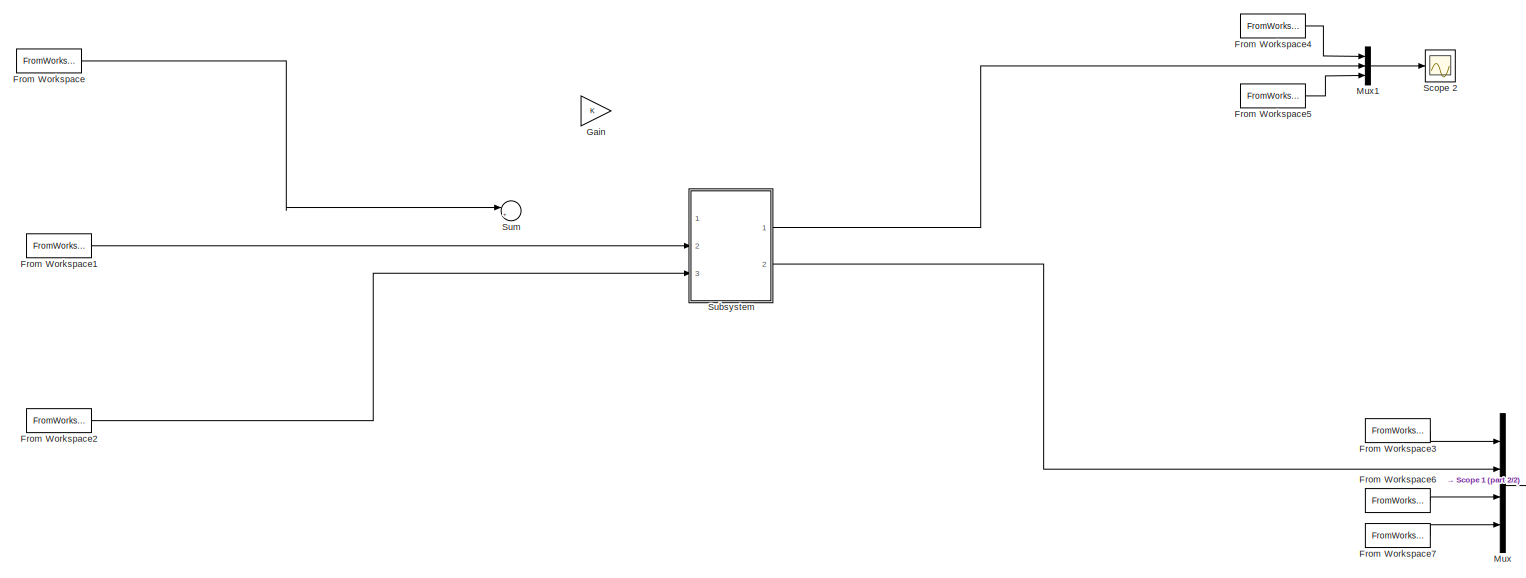
[diagram: root canvas - part 1/2, most of the canvas]
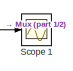
[diagram: root canvas - part 2/2, bottom right region]
MODEL slx_86004a4b430e
KIND model
CONFIG AbsTol = auto
CONFIG EnableMultiTasking = off
CONFIG FixedStep = auto
CONFIG MaxStep = auto
CONFIG MinStep = auto
CONFIG RelTol = 1e-3
CONFIG SampleTimeConstraint = Unconstrained
CONFIG Solver = VariableStepAuto
CONFIG SolverName = VariableStepAuto
CONFIG StartTime = 0.0
CONFIG StopTime = 270
BLOCK [FromWorkspace] From Workspace
  SampleTime = 0
  VariableName = sim_u
  ZeroCross = on
BLOCK [FromWorkspace] From Workspace1
  SampleTime = 0
  VariableName = sim_vt
  ZeroCross = on
BLOCK [FromWorkspace] From Workspace2
  SampleTime = 0
  VariableName = sim_vo
  ZeroCross = on
BLOCK [FromWorkspace] From Workspace3
  SampleTime = 0
  VariableName = sim_h2
  ZeroCross = on
BLOCK [FromWorkspace] From Workspace4
  SampleTime = 0
  VariableName = sim_h1
  ZeroCross = on
BLOCK [FromWorkspace] From Workspace5
  SampleTime = 0
  VariableName = sim_u
  ZeroCross = on
BLOCK [FromWorkspace] From Workspace6
  SampleTime = 0
  VariableName = sim_vt
  ZeroCross = on
BLOCK [FromWorkspace] From Workspace7
  SampleTime = 0
  VariableName = sim_vo
  ZeroCross = on
BLOCK [Gain] Gain
  OutDataTypeStr = Inherit: Inherit via internal rule
  ParamDataTypeStr = Inherit: Inherit via internal rule
  SaturateOnIntegerOverflow = off
BLOCK [Mux] Mux
  DisplayOption = bar
  Ports = [4, 1]
BLOCK [Mux] Mux1
  DisplayOption = bar
  Inputs = 3
  Ports = [3, 1]
BLOCK [Scope] Scope 1
  NumInputPorts = 1
  Ports = [1]
  ScopeSpecificationString = Simulink.scopes.TimeScopeBlockCfg('CurrentConfiguration', extmgr.ConfigurationSet(extmgr.Configuration('Core','General UI',true),extmgr.Configuration('Core','Source UI',true),extmgr.Configuration('Sources','WiredSimulink',true,'DataLoggingVariableName','h2_nolinear','DataLogging',true,'DataLoggingSaveFormat','Array','SampleTime','0.1222'),extmgr.Configuration('Visuals','Time Domain',true,'Serializ...<+1570ch>
BLOCK [Scope] Scope 2
  NumInputPorts = 1
  Ports = [1]
  ScopeSpecificationString = Simulink.scopes.TimeScopeBlockCfg('CurrentConfiguration', extmgr.ConfigurationSet(extmgr.Configuration('Core','General UI',true),extmgr.Configuration('Core','Source UI',true),extmgr.Configuration('Sources','WiredSimulink',true,'DataLoggingVariableName','vypust_leva','DataLogging',true,'DataLoggingSaveFormat','Array','SampleTime','0.1222'),extmgr.Configuration('Visuals','Time Domain',true,'Serializ...<+1551ch>
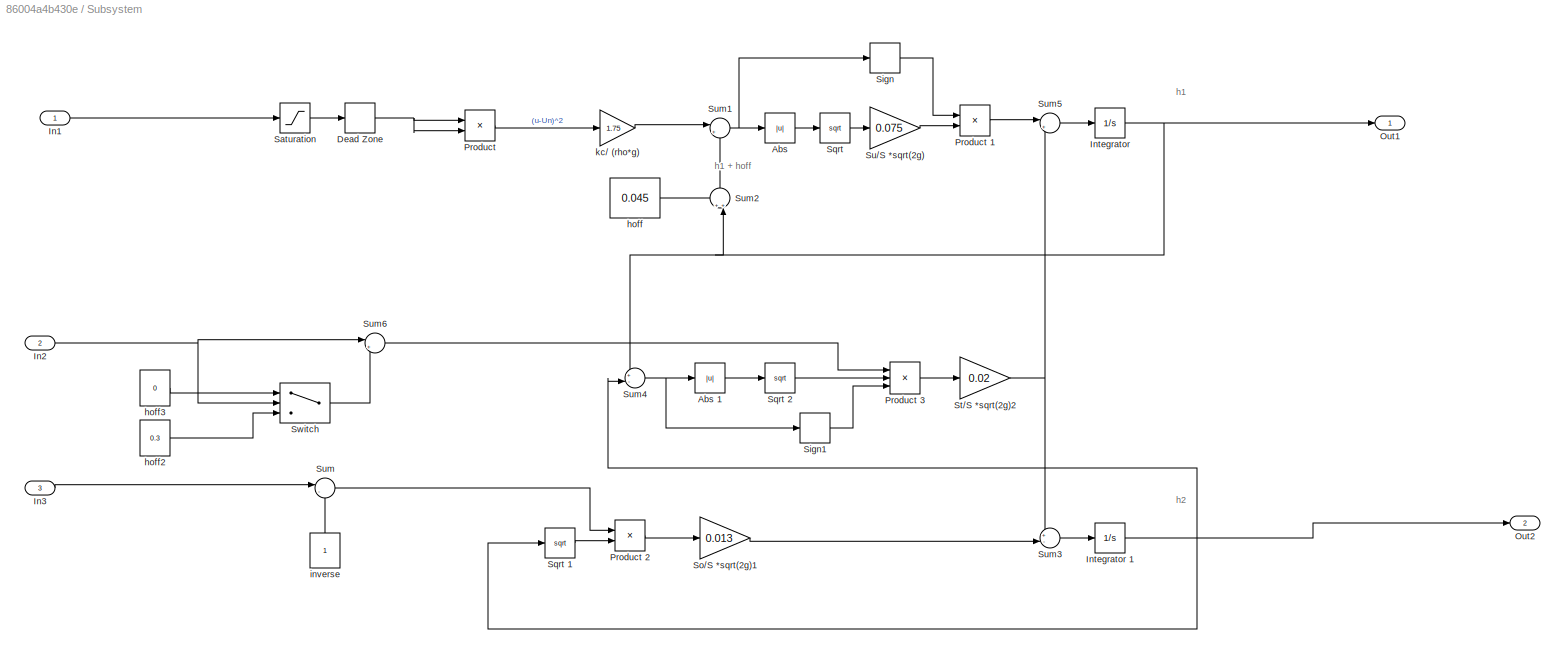
BLOCK [SubSystem] Subsystem
  Ports = [3, 2]
  RequestExecContextInheritance = off
  Variant = off
BLOCK [Constant] Subsystem/ hoff
  Value = 0.045
BLOCK [Constant] Subsystem/ hoff2
  Value = 0.3
BLOCK [Constant] Subsystem/ hoff3
  Value = 0
BLOCK [Constant] Subsystem/ inverse
BLOCK [Abs] Subsystem/Abs 
  SaturateOnIntegerOverflow = off
BLOCK [Abs] Subsystem/Abs 1
  SaturateOnIntegerOverflow = off
BLOCK [DeadZone] Subsystem/Dead Zone 
  LowerValue = 0
  UpperValue = 0.05
BLOCK [Inport] Subsystem/In1
  IconDisplay = Port number
BLOCK [Inport] Subsystem/In2
  IconDisplay = Port number
  Port = 2
BLOCK [Inport] Subsystem/In3
  IconDisplay = Port number
  Port = 3
BLOCK [Integrator] Subsystem/Integrator 
  InitialCondition = -0.045
  LimitOutput = on
  LowerSaturationLimit = -0.045
  Ports = [1, 1]
  UpperSaturationLimit = 0.71
BLOCK [Integrator] Subsystem/Integrator 1
  LimitOutput = on
  LowerSaturationLimit = 0
  Ports = [1, 1]
  UpperSaturationLimit = 0.71
BLOCK [Outport] Subsystem/Out1
  IconDisplay = Port number
BLOCK [Outport] Subsystem/Out2
  IconDisplay = Port number
  Port = 2
BLOCK [Product] Subsystem/Product 
  InputSameDT = off
  OutDataTypeStr = Inherit: Inherit via internal rule
  Ports = [2, 1]
  RndMeth = Floor
  SaturateOnIntegerOverflow = off
BLOCK [Product] Subsystem/Product 1
  InputSameDT = off
  OutDataTypeStr = Inherit: Inherit via internal rule
  Ports = [2, 1]
  RndMeth = Floor
  SaturateOnIntegerOverflow = off
BLOCK [Product] Subsystem/Product 2
  InputSameDT = off
  OutDataTypeStr = Inherit: Inherit via internal rule
  Ports = [2, 1]
  RndMeth = Floor
  SaturateOnIntegerOverflow = off
BLOCK [Product] Subsystem/Product 3
  InputSameDT = off
  Inputs = 3
  OutDataTypeStr = Inherit: Inherit via internal rule
  Ports = [3, 1]
  RndMeth = Floor
  SaturateOnIntegerOverflow = off
BLOCK [Saturate] Subsystem/Saturation 
  InputPortMap = u0
  Ports = [1, 1]
  UpperLimit = 1
BLOCK [Signum] Subsystem/Sign
BLOCK [Signum] Subsystem/Sign1
BLOCK [Gain] Subsystem/So//S *sqrt(2g)1
  Gain = 0.013
  OutDataTypeStr = Inherit: Inherit via internal rule
  ParamDataTypeStr = Inherit: Inherit via internal rule
  SaturateOnIntegerOverflow = off
BLOCK [Sqrt] Subsystem/Sqrt 
BLOCK [Sqrt] Subsystem/Sqrt 1
BLOCK [Sqrt] Subsystem/Sqrt 2
BLOCK [Gain] Subsystem/St//S *sqrt(2g)2
  Gain = 0.02
  OutDataTypeStr = Inherit: Inherit via internal rule
  ParamDataTypeStr = Inherit: Inherit via internal rule
  SaturateOnIntegerOverflow = off
BLOCK [Gain] Subsystem/Su//S *sqrt(2g)
  Gain = 0.075
  OutDataTypeStr = Inherit: Inherit via internal rule
  ParamDataTypeStr = Inherit: Inherit via internal rule
  SaturateOnIntegerOverflow = off
BLOCK [Sum] Subsystem/Sum
  IconShape = round
  InputSameDT = off
  Inputs = |-+
  OutDataTypeStr = Inherit: Inherit via internal rule
  Ports = [2, 1]
  SaturateOnIntegerOverflow = off
BLOCK [Sum] Subsystem/Sum1
  IconShape = round
  InputSameDT = off
  Inputs = |+-
  OutDataTypeStr = Inherit: Inherit via internal rule
  Ports = [2, 1]
  SaturateOnIntegerOverflow = off
BLOCK [Sum] Subsystem/Sum2
  IconShape = round
  InputSameDT = off
  Inputs = ++|
  OutDataTypeStr = Inherit: Inherit via internal rule
  Ports = [2, 1]
  SaturateOnIntegerOverflow = off
BLOCK [Sum] Subsystem/Sum3
  IconShape = round
  InputSameDT = off
  Inputs = +-|
  OutDataTypeStr = Inherit: Inherit via internal rule
  Ports = [2, 1]
  SaturateOnIntegerOverflow = off
BLOCK [Sum] Subsystem/Sum4
  IconShape = round
  InputSameDT = off
  Inputs = +-|
  OutDataTypeStr = Inherit: Inherit via internal rule
  Ports = [2, 1]
  SaturateOnIntegerOverflow = off
BLOCK [Sum] Subsystem/Sum5
  IconShape = round
  InputSameDT = off
  Inputs = |+-
  OutDataTypeStr = Inherit: Inherit via internal rule
  Ports = [2, 1]
  SaturateOnIntegerOverflow = off
BLOCK [Sum] Subsystem/Sum6
  IconShape = round
  InputSameDT = off
  Inputs = |++
  OutDataTypeStr = Inherit: Inherit via internal rule
  Ports = [2, 1]
  SaturateOnIntegerOverflow = off
BLOCK [Switch] Subsystem/Switch
  Criteria = u2 > Threshold
  InputSameDT = off
  SaturateOnIntegerOverflow = off
  Threshold = 0.5
BLOCK [Gain] Subsystem/kc// (rho*g)
  Gain = 1.75
  OutDataTypeStr = Inherit: Inherit via internal rule
  ParamDataTypeStr = Inherit: Inherit via internal rule
  SaturateOnIntegerOverflow = off
BLOCK [Sum] Sum
  IconShape = round
  InputSameDT = off
  Inputs = |++
  OutDataTypeStr = Inherit: Inherit via internal rule
  Ports = [2, 1]
  SaturateOnIntegerOverflow = off
ANNOTATION Subsystem: h1
ANNOTATION Subsystem: h1 + hoff
ANNOTATION Subsystem: h2
LINE From Workspace1:1 -> Subsystem:2
LINE From Workspace2:1 -> Subsystem:3
LINE From Workspace3:1 -> Mux:1
LINE From Workspace4:1 -> Mux1:1
LINE From Workspace5:1 -> Mux1:3
LINE From Workspace6:1 -> Mux:3
LINE From Workspace7:1 -> Mux:4
LINE From Workspace:1 -> Sum:1
LINE Mux1:1 -> Scope 2:1
LINE Mux:1 -> Scope 1:1
LINE Subsystem/ hoff2:1 -> Subsystem/Switch:3
LINE Subsystem/ hoff3:1 -> Subsystem/Switch:1
LINE Subsystem/ hoff:1 -> Subsystem/Sum2:1
LINE Subsystem/ inverse:1 -> Subsystem/Sum:2
LINE Subsystem/Abs 1:1 -> Subsystem/Sqrt 2:1
LINE Subsystem/Abs :1 -> Subsystem/Sqrt :1
NET Subsystem/Dead Zone :1 -> Subsystem/Product :1, Subsystem/Product :2
LINE Subsystem/In1:1 -> Subsystem/Saturation :1
NET Subsystem/In2:1 -> Subsystem/Sum6:1, Subsystem/Switch:2
LINE Subsystem/In3:1 -> Subsystem/Sum:1
NET Subsystem/Integrator 1:1 -> Subsystem/Out2:1, Subsystem/Sqrt 1:1, Subsystem/Sum4:2
NET Subsystem/Integrator :1 -> Subsystem/Out1:1, Subsystem/Sum2:2, Subsystem/Sum4:1
LINE Subsystem/Product 1:1 -> Subsystem/Sum5:1
LINE Subsystem/Product 2:1 -> Subsystem/So//S *sqrt(2g)1:1
LINE Subsystem/Product 3:1 -> Subsystem/St//S *sqrt(2g)2:1
LINE Subsystem/Product :1 -> Subsystem/kc// (rho*g):1
LINE Subsystem/Saturation :1 -> Subsystem/Dead Zone :1
LINE Subsystem/Sign1:1 -> Subsystem/Product 3:3
LINE Subsystem/Sign:1 -> Subsystem/Product 1:1
LINE Subsystem/So//S *sqrt(2g)1:1 -> Subsystem/Sum3:2
LINE Subsystem/Sqrt 1:1 -> Subsystem/Product 2:2
LINE Subsystem/Sqrt 2:1 -> Subsystem/Product 3:2
LINE Subsystem/Sqrt :1 -> Subsystem/Su//S *sqrt(2g):1
NET Subsystem/St//S *sqrt(2g)2:1 -> Subsystem/Sum3:1, Subsystem/Sum5:2
LINE Subsystem/Su//S *sqrt(2g):1 -> Subsystem/Product 1:2
NET Subsystem/Sum1:1 -> Subsystem/Abs :1, Subsystem/Sign:1
LINE Subsystem/Sum2:1 -> Subsystem/Sum1:2
LINE Subsystem/Sum3:1 -> Subsystem/Integrator 1:1
NET Subsystem/Sum4:1 -> Subsystem/Abs 1:1, Subsystem/Sign1:1
LINE Subsystem/Sum5:1 -> Subsystem/Integrator :1
LINE Subsystem/Sum6:1 -> Subsystem/Product 3:1
LINE Subsystem/Sum:1 -> Subsystem/Product 2:1
LINE Subsystem/Switch:1 -> Subsystem/Sum6:2
LINE Subsystem/kc// (rho*g):1 -> Subsystem/Sum1:1
LINE Subsystem:1 -> Mux1:2
LINE Subsystem:2 -> Mux:2
note: NET lines group one-source signal fan-out (src -> all destinations, sorted); 1:1 wires keep LINE
